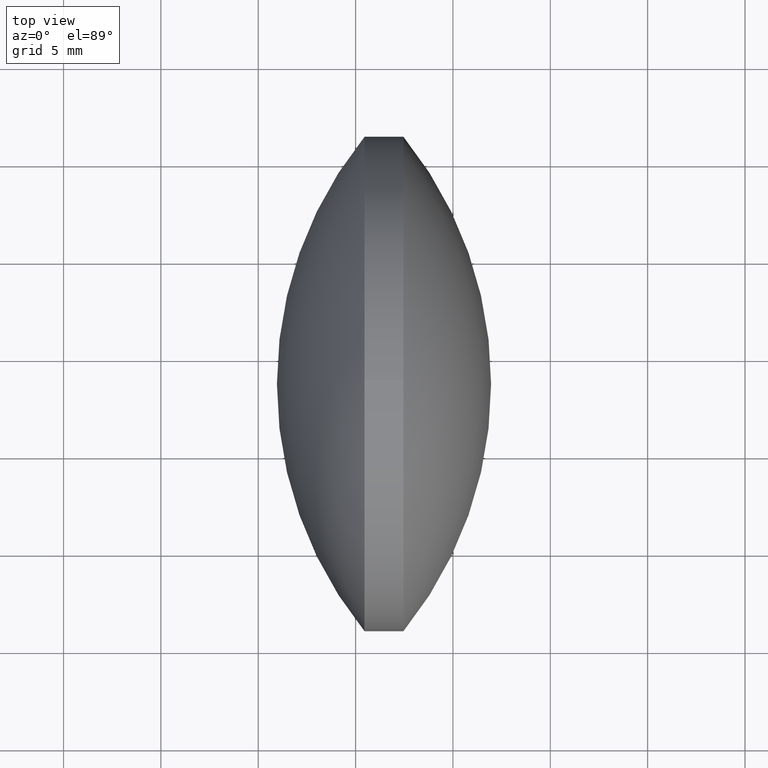
[diagram: clean part render]
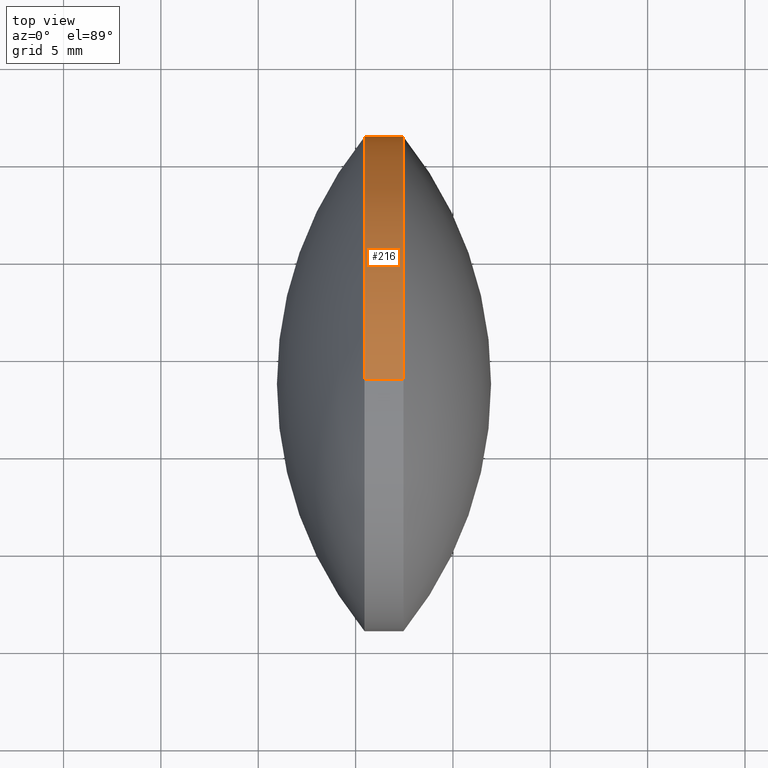
[diagram: same view with one face highlighted and labeled with its STEP entity id]
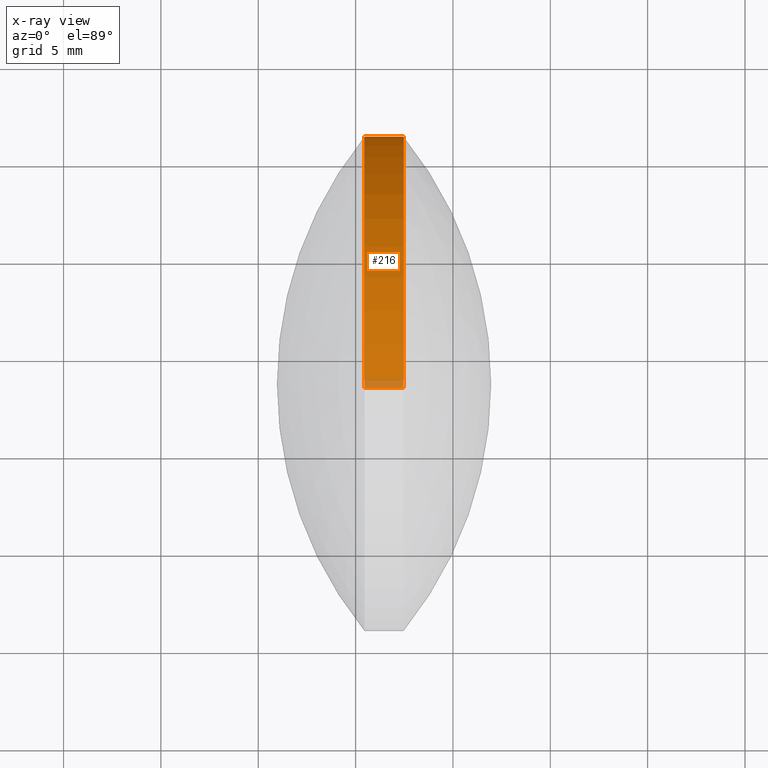
[diagram: x-ray of the same camera — body ghosted, the highlighted face saturated]
A machine part, top view. The second image highlights one B-rep face of the part: STEP entity #216.
The next image is the same camera in x-ray: the body ghosted, the highlighted face saturated — about 3% of this face is hidden behind the body in this view.
In plain terms, the highlighted cylindrical surface (partial cylindrical patch) has radius 12.7 mm, axis along (-1, -0, -0).
Its self-contained STEP definition (entity closure, byte-faithful):
#7 = DIRECTION ( 'NONE',  ( -1.000000000000000000, -0.0000000000000000000, -0.0000000000000000000 ) ) ;
#8 = CIRCLE ( 'NONE', #101, 12.69999999999999600 ) ;
#19 = AXIS2_PLACEMENT_3D ( 'NONE', #240, #323, #120 ) ;
#29 = VERTEX_POINT ( 'NONE', #261 ) ;
#34 = VECTOR ( 'NONE', #333, 1000.000000000000000 ) ;
#42 = AXIS2_PLACEMENT_3D ( 'NONE', #85, #266, #269 ) ;
#46 = ORIENTED_EDGE ( 'NONE', *, *, #258, .F. ) ;
#51 = EDGE_CURVE ( 'NONE', #208, #232, #309, .T. ) ;
#55 = AXIS2_PLACEMENT_3D ( 'NONE', #86, #7, #140 ) ;
#64 = CARTESIAN_POINT ( 'NONE',  ( 79.30540135083715800, 48.61611302318478100, -12.69999999999999600 ) ) ;
#67 = AXIS2_PLACEMENT_3D ( 'NONE', #321, #270, #142 ) ;
#79 = CIRCLE ( 'NONE', #42, 12.69999999999999600 ) ;
#80 = EDGE_CURVE ( 'NONE', #232, #341, #178, .T. ) ;
#85 = CARTESIAN_POINT ( 'NONE',  ( 85.45852234609111500, 48.61611302318478100, 0.0000000000000000000 ) ) ;
#86 = CARTESIAN_POINT ( 'NONE',  ( 87.45786520323396500, 48.61611302318478100, 0.0000000000000000000 ) ) ;
#92 = VERTEX_POINT ( 'NONE', #180 ) ;
#101 = AXIS2_PLACEMENT_3D ( 'NONE', #188, #328, #209 ) ;
#104 = ORIENTED_EDGE ( 'NONE', *, *, #340, .F. ) ;
#111 = CYLINDRICAL_SURFACE ( 'NONE', #19, 12.69999999999999600 ) ;
#119 = CARTESIAN_POINT ( 'NONE',  ( 87.45786520323396500, 61.31611302318477600, 0.0000000000000000000 ) ) ;
#120 = DIRECTION ( 'NONE',  ( 0.0000000000000000000, 0.0000000000000000000, 1.000000000000000000 ) ) ;
#130 = CIRCLE ( 'NONE', #55, 12.69999999999999600 ) ;
#133 = LINE ( 'NONE', #319, #34 ) ;
#140 = DIRECTION ( 'NONE',  ( 0.0000000000000000000, 0.0000000000000000000, 1.000000000000000000 ) ) ;
#142 = DIRECTION ( 'NONE',  ( 0.0000000000000000000, 0.0000000000000000000, 1.000000000000000000 ) ) ;
#159 = DIRECTION ( 'NONE',  ( -1.000000000000000000, -0.0000000000000000000, -0.0000000000000000000 ) ) ;
#178 = LINE ( 'NONE', #64, #345 ) ;
#179 = ORIENTED_EDGE ( 'NONE', *, *, #51, .T. ) ;
#180 = CARTESIAN_POINT ( 'NONE',  ( 85.45852234609111500, 48.61611302318478100, 12.69999999999999600 ) ) ;
#188 = CARTESIAN_POINT ( 'NONE',  ( 85.45852234609111500, 48.61611302318478100, 0.0000000000000000000 ) ) ;
#200 = ORIENTED_EDGE ( 'NONE', *, *, #313, .T. ) ;
#208 = VERTEX_POINT ( 'NONE', #119 ) ;
#209 = DIRECTION ( 'NONE',  ( 0.0000000000000000000, 0.0000000000000000000, 1.000000000000000000 ) ) ;
#210 = EDGE_CURVE ( 'NONE', #312, #92, #133, .T. ) ;
#212 = FACE_OUTER_BOUND ( 'NONE', #262, .T. ) ;
#216 = ADVANCED_FACE ( 'NONE', ( #212 ), #111, .T. ) ;
#223 = ORIENTED_EDGE ( 'NONE', *, *, #80, .T. ) ;
#232 = VERTEX_POINT ( 'NONE', #295 ) ;
#240 = CARTESIAN_POINT ( 'NONE',  ( 79.30540135083715800, 48.61611302318478100, 0.0000000000000000000 ) ) ;
#258 = EDGE_CURVE ( 'NONE', #92, #29, #79, .T. ) ;
#261 = CARTESIAN_POINT ( 'NONE',  ( 85.45852234609111500, 61.31611302318477600, 0.0000000000000000000 ) ) ;
#262 = EDGE_LOOP ( 'NONE', ( #179, #223, #104, #46, #326, #200 ) ) ;
#266 = DIRECTION ( 'NONE',  ( -1.000000000000000000, -0.0000000000000000000, -0.0000000000000000000 ) ) ;
#268 = CARTESIAN_POINT ( 'NONE',  ( 87.45786520323396500, 48.61611302318478100, 12.69999999999999600 ) ) ;
#269 = DIRECTION ( 'NONE',  ( 0.0000000000000000000, 0.0000000000000000000, 1.000000000000000000 ) ) ;
#270 = DIRECTION ( 'NONE',  ( -1.000000000000000000, -0.0000000000000000000, -0.0000000000000000000 ) ) ;
#295 = CARTESIAN_POINT ( 'NONE',  ( 87.45786520323396500, 48.61611302318478100, -12.69999999999999600 ) ) ;
#296 = CARTESIAN_POINT ( 'NONE',  ( 85.45852234609111500, 48.61611302318478100, -12.69999999999999600 ) ) ;
#309 = CIRCLE ( 'NONE', #67, 12.69999999999999600 ) ;
#312 = VERTEX_POINT ( 'NONE', #268 ) ;
#313 = EDGE_CURVE ( 'NONE', #312, #208, #130, .T. ) ;
#319 = CARTESIAN_POINT ( 'NONE',  ( 79.30540135083715800, 48.61611302318478100, 12.69999999999999600 ) ) ;
#321 = CARTESIAN_POINT ( 'NONE',  ( 87.45786520323396500, 48.61611302318478100, 0.0000000000000000000 ) ) ;
#323 = DIRECTION ( 'NONE',  ( -1.000000000000000000, -0.0000000000000000000, -0.0000000000000000000 ) ) ;
#326 = ORIENTED_EDGE ( 'NONE', *, *, #210, .F. ) ;
#328 = DIRECTION ( 'NONE',  ( -1.000000000000000000, -0.0000000000000000000, -0.0000000000000000000 ) ) ;
#333 = DIRECTION ( 'NONE',  ( -1.000000000000000000, -0.0000000000000000000, -0.0000000000000000000 ) ) ;
#340 = EDGE_CURVE ( 'NONE', #29, #341, #8, .T. ) ;
#341 = VERTEX_POINT ( 'NONE', #296 ) ;
#345 = VECTOR ( 'NONE', #159, 1000.000000000000000 ) ;